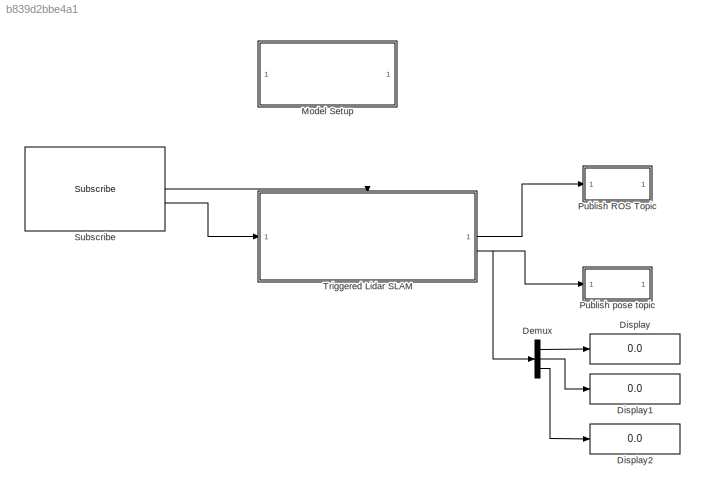
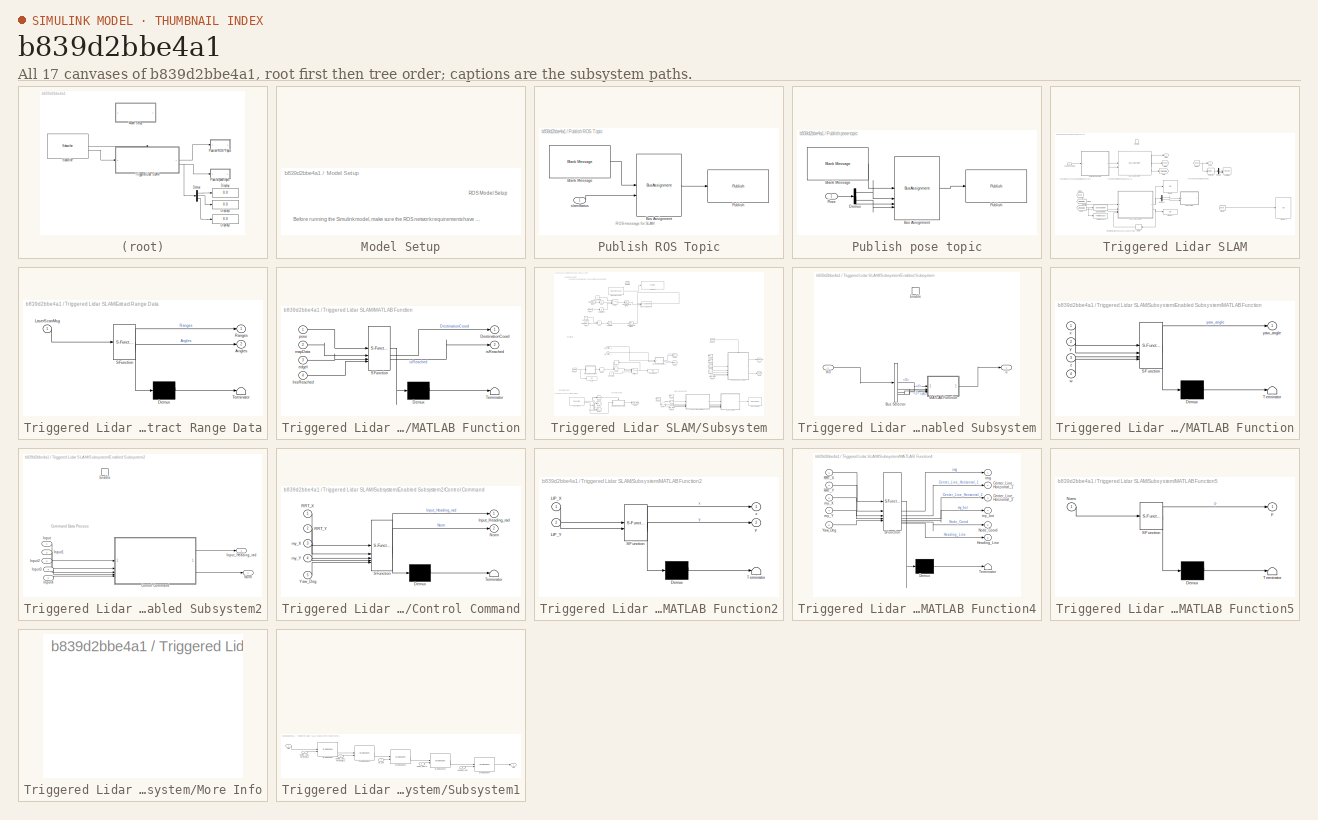
[diagram: thumbnail index - all 17 canvases of the model, root first then tree order]
MODEL slx_b839d2bbe4a1
KIND model
CONFIG AbsTol = auto
CONFIG EnableMultiTasking = off
CONFIG FixedStep = auto
CONFIG MaxStep = auto
CONFIG MinStep = auto
CONFIG RelTol = 1e-3
CONFIG SampleTimeConstraint = Unconstrained
CONFIG SolverName = FixedStepAuto
CONFIG StartTime = 0.0
CONFIG StopTime = inf
WORKSPACE source: mxarray member
WORKSPACE SL_ROS_VariableLengthArrays_MaxSizes: object (value not decoded)
BLOCK [Demux] Demux
  Outputs = 3
BLOCK [Display] Display
  Decimation = 1
BLOCK [Display] Display1
  Decimation = 1
BLOCK [Display] Display2
  Decimation = 1
BLOCK [SubSystem] Model Setup
BLOCK [SubSystem] Publish ROS Topic
BLOCK [Reference] Publish ROS Topic/Blank Message  REF=robotlib/Blank Message
  SourceBlock = robotlib/Blank Message
  SourceType = ROS Blank Message
BLOCK [BusAssignment] Publish ROS Topic/Bus Assignment
  AssignedSignals = Data
BLOCK [Reference] Publish ROS Topic/Publish  REF=robotlib/Publish
  SourceBlock = robotlib/Publish
  SourceType = ROS Publish
BLOCK [Inport] Publish ROS Topic/slamStatus
BLOCK [SubSystem] Publish pose topic
BLOCK [Reference] Publish pose topic/Blank Message  REF=robotlib/Blank Message
  SourceBlock = robotlib/Blank Message
  SourceType = ROS Blank Message
BLOCK [BusAssignment] Publish pose topic/Bus Assignment
  AssignedSignals = X,Y,Theta
BLOCK [Demux] Publish pose topic/Demux
  Outputs = 3
BLOCK [Inport] Publish pose topic/Pose
  NameLocation = top
BLOCK [Reference] Publish pose topic/Publish  REF=robotlib/Publish
  SourceBlock = robotlib/Publish
  SourceType = ROS Publish
BLOCK [Reference] Subscribe  REF=robotlib/Subscribe
  SourceBlock = robotlib/Subscribe
  SourceType = ROS Subscribe
BLOCK [SubSystem] Triggered Lidar SLAM
BLOCK [Delay] Triggered Lidar SLAM/Delay
  DelayLength = 10
  InputPortMap = u0
  NameLocation = top
BLOCK [Demux] Triggered Lidar SLAM/Demux
  Outputs = 2
BLOCK [Demux] Triggered Lidar SLAM/Demux1
  Commented = on
  Outputs = 2
BLOCK [Display] Triggered Lidar SLAM/Display
  Commented = on
  Decimation = 1
BLOCK [Display] Triggered Lidar SLAM/Display1
  Decimation = 1
BLOCK [Display] Triggered Lidar SLAM/Display4
  Decimation = 1
BLOCK [Reference] Triggered Lidar SLAM/Edge Detection  REF=visionanalysis/Edge Detection
  SourceBlock = visionanalysis/Edge Detection
  SourceType = Edge Detection
BLOCK [EnablePort] Triggered Lidar SLAM/Enable
  PropagateVarSize = During execution
BLOCK [SubSystem] Triggered Lidar SLAM/Extract Range Data
  ErrorFcn = Stateflow.Translate.translate
  PermitHierarchicalResolution = ExplicitOnly
  SFBlockType = MATLAB Function
  TreatAsAtomicUnit = on
BLOCK [Demux] Triggered Lidar SLAM/Extract Range Data/ Demux 
  Outputs = 1
BLOCK [S-Function] Triggered Lidar SLAM/Extract Range Data/ SFunction 
  EnableBusSupport = on
  FunctionName = sf_sfun
  PortCounts = [1 3]
  SFcnIsStateOwnerBlock = off
  SFunctionDeploymentMode = off
  Tag = Stateflow S-Function 5
BLOCK [Terminator] Triggered Lidar SLAM/Extract Range Data/ Terminator 
BLOCK [Outport] Triggered Lidar SLAM/Extract Range Data/Angles
  Port = 2
  VectorParamsAs1DForOutWhenUnconnected = off
BLOCK [Inport] Triggered Lidar SLAM/Extract Range Data/LaserScanMsg
BLOCK [Outport] Triggered Lidar SLAM/Extract Range Data/Ranges
  VectorParamsAs1DForOutWhenUnconnected = off
BLOCK [From] Triggered Lidar SLAM/From
  GotoTag = mapData
BLOCK [From] Triggered Lidar SLAM/From1
  GotoTag = pose
BLOCK [From] Triggered Lidar SLAM/From2
  GotoTag = mapData
BLOCK [From] Triggered Lidar SLAM/From3
  GotoTag = pose
BLOCK [From] Triggered Lidar SLAM/From4
  GotoTag = pose
BLOCK [Goto] Triggered Lidar SLAM/Goto
  GotoTag = mapData
BLOCK [Goto] Triggered Lidar SLAM/Goto1
  GotoTag = pose
BLOCK [Inport] Triggered Lidar SLAM/LaserScanMsg
  NameLocation = top
BLOCK [SubSystem] Triggered Lidar SLAM/MATLAB Function
  ErrorFcn = Stateflow.Translate.translate
  LibrarySourceBlock = simulink/User-Defined\nFunctions/MATLAB Function
  PermitHierarchicalResolution = ExplicitOnly
  SFBlockType = MATLAB Function
  TreatAsAtomicUnit = on
BLOCK [Demux] Triggered Lidar SLAM/MATLAB Function/ Demux 
  Outputs = 1
BLOCK [S-Function] Triggered Lidar SLAM/MATLAB Function/ SFunction 
  EnableBusSupport = on
  FunctionName = sf_sfun
  PortCounts = [4 3]
  SFcnIsStateOwnerBlock = off
  SFunctionDeploymentMode = off
  Tag = Stateflow S-Function 1
BLOCK [Terminator] Triggered Lidar SLAM/MATLAB Function/ Terminator 
BLOCK [Outport] Triggered Lidar SLAM/MATLAB Function/DestinationCoord
BLOCK [Inport] Triggered Lidar SLAM/MATLAB Function/InisReached
  Port = 4
BLOCK [Inport] Triggered Lidar SLAM/MATLAB Function/edgeI
  Port = 3
BLOCK [Outport] Triggered Lidar SLAM/MATLAB Function/isReached
  Port = 2
BLOCK [Inport] Triggered Lidar SLAM/MATLAB Function/mapData
  Port = 2
BLOCK [Inport] Triggered Lidar SLAM/MATLAB Function/pose
BLOCK [MATLABSystem] Triggered Lidar SLAM/MATLAB System
  MaskDisplay = disp('LidarSlam_interp');\nport_label('input',1,'ranges');\nport_label('input',2,'angles');\nport_label('output',1,'slamStatus');\nport_label('output',2,'pose');\nport_label('output',3,'mapData');
  MaskType = LidarSlam_interp
  SimulateUsing = Interpreted execution
  System = LidarSlam_interp
  mapResolution = 20
  maxLidarRange = 10
  maxNumScans = 15
BLOCK [Outport] Triggered Lidar SLAM/Pose
  Port = 2
BLOCK [Selector] Triggered Lidar SLAM/Selector
  IndexOptions = Index vector (dialog)
  Indices = [1 2]
  InputPortWidth = 3
  OutputSizes = 1
BLOCK [Outport] Triggered Lidar SLAM/Status
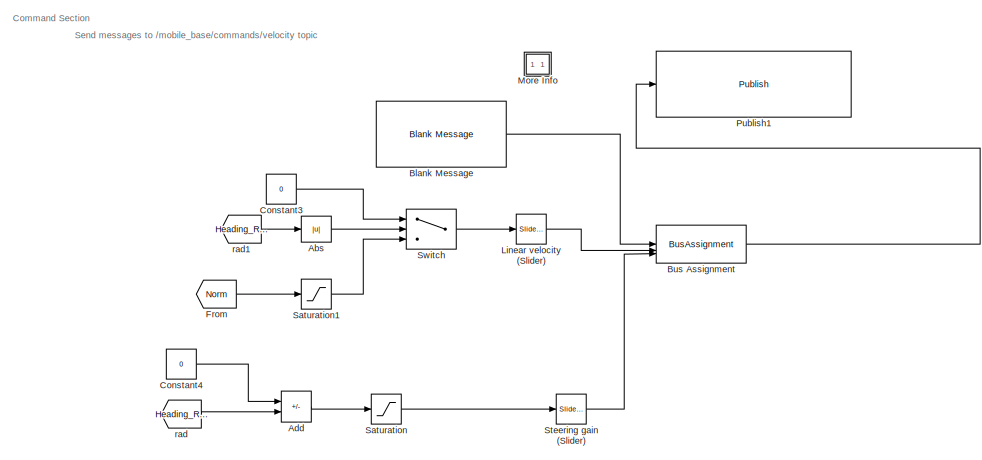
[diagram: Triggered Lidar SLAM/Subsystem - part 1/4, top left region]
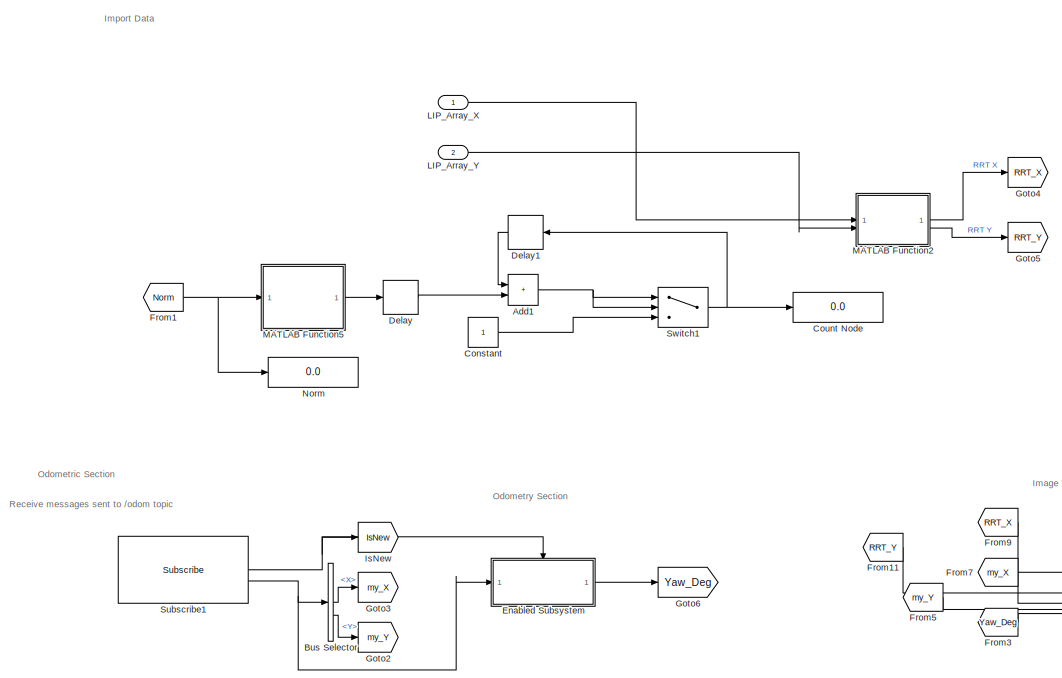
[diagram: Triggered Lidar SLAM/Subsystem - part 2/4, bottom left region]
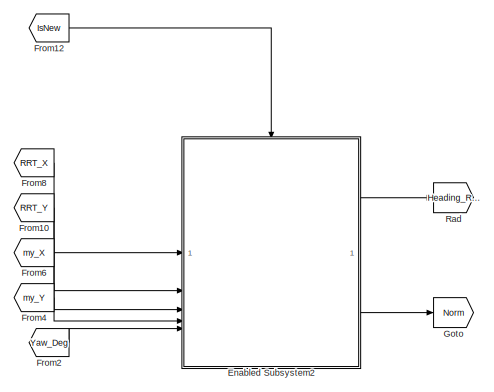
[diagram: Triggered Lidar SLAM/Subsystem - part 3/4, middle right region]
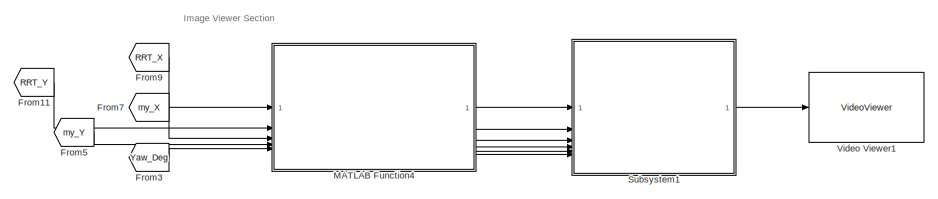
[diagram: Triggered Lidar SLAM/Subsystem - part 4/4, bottom right region]
BLOCK [SubSystem] Triggered Lidar SLAM/Subsystem
  Commented = on
BLOCK [Abs] Triggered Lidar SLAM/Subsystem/Abs
  SaturateOnIntegerOverflow = off
BLOCK [Sum] Triggered Lidar SLAM/Subsystem/Add
  IconShape = rectangular
  Inputs = +-
BLOCK [Sum] Triggered Lidar SLAM/Subsystem/Add1
  IconShape = rectangular
BLOCK [Reference] Triggered Lidar SLAM/Subsystem/Blank Message  REF=robotlib/Blank Message
  SourceBlock = robotlib/Blank Message
  SourceType = ROS Blank Message
BLOCK [BusAssignment] Triggered Lidar SLAM/Subsystem/Bus Assignment
  AssignedSignals = Linear.X,Angular.Z
  DialogController = Simulink.DDGSource_BusAssignment
BLOCK [BusSelector] Triggered Lidar SLAM/Subsystem/Bus Selector
  DialogController = Simulink.DDGSource_BusSelector
  OutputSignals = Pose.Pose.Position.X,Pose.Pose.Position.Y
BLOCK [Constant] Triggered Lidar SLAM/Subsystem/Constant
BLOCK [Constant] Triggered Lidar SLAM/Subsystem/Constant3
  NameLocation = left
  Value = 0
BLOCK [Constant] Triggered Lidar SLAM/Subsystem/Constant4
  Value = 0
BLOCK [Display] Triggered Lidar SLAM/Subsystem/Count Node
  Decimation = 1
BLOCK [Delay] Triggered Lidar SLAM/Subsystem/Delay
  DelayLength = 1
  InputPortMap = u0
BLOCK [Delay] Triggered Lidar SLAM/Subsystem/Delay1
  DelayLength = 1
  InputPortMap = u0
  NameLocation = top
BLOCK [SubSystem] Triggered Lidar SLAM/Subsystem/Enabled Subsystem
  TreatAsAtomicUnit = on
BLOCK [BusSelector] Triggered Lidar SLAM/Subsystem/Enabled Subsystem/Bus Selector
  OutputSignals = Pose.Pose.Orientation.X,Pose.Pose.Orientation.Y,Pose.Pose.Orientation.Z,Pose.Pose.Orientation.W
BLOCK [EnablePort] Triggered Lidar SLAM/Subsystem/Enabled Subsystem/Enable
BLOCK [Inport] Triggered Lidar SLAM/Subsystem/Enabled Subsystem/In3
BLOCK [SubSystem] Triggered Lidar SLAM/Subsystem/Enabled Subsystem/MATLAB Function
  ErrorFcn = Stateflow.Translate.translate
  LibrarySourceBlock = simulink/User-Defined\nFunctions/MATLAB Function
  PermitHierarchicalResolution = ExplicitOnly
  SFBlockType = MATLAB Function
  TreatAsAtomicUnit = on
BLOCK [Demux] Triggered Lidar SLAM/Subsystem/Enabled Subsystem/MATLAB Function/ Demux 
  Outputs = 1
BLOCK [S-Function] Triggered Lidar SLAM/Subsystem/Enabled Subsystem/MATLAB Function/ SFunction 
  EnableBusSupport = on
  FunctionName = sf_sfun
  PortCounts = [4 2]
  SFcnIsStateOwnerBlock = off
  SFunctionDeploymentMode = off
  Tag = Stateflow S-Function 2
BLOCK [Terminator] Triggered Lidar SLAM/Subsystem/Enabled Subsystem/MATLAB Function/ Terminator 
BLOCK [Inport] Triggered Lidar SLAM/Subsystem/Enabled Subsystem/MATLAB Function/w
  Port = 4
BLOCK [Inport] Triggered Lidar SLAM/Subsystem/Enabled Subsystem/MATLAB Function/x
BLOCK [Inport] Triggered Lidar SLAM/Subsystem/Enabled Subsystem/MATLAB Function/y
  Port = 2
BLOCK [Outport] Triggered Lidar SLAM/Subsystem/Enabled Subsystem/MATLAB Function/yaw_angle
BLOCK [Inport] Triggered Lidar SLAM/Subsystem/Enabled Subsystem/MATLAB Function/z
  Port = 3
BLOCK [Outport] Triggered Lidar SLAM/Subsystem/Enabled Subsystem/u
BLOCK [SubSystem] Triggered Lidar SLAM/Subsystem/Enabled Subsystem2
  TreatAsAtomicUnit = on
BLOCK [SubSystem] Triggered Lidar SLAM/Subsystem/Enabled Subsystem2/Control Command
  ErrorFcn = Stateflow.Translate.translate
  LibrarySourceBlock = simulink/User-Defined\nFunctions/MATLAB Function
  PermitHierarchicalResolution = ExplicitOnly
  SFBlockType = MATLAB Function
  TreatAsAtomicUnit = on
BLOCK [Demux] Triggered Lidar SLAM/Subsystem/Enabled Subsystem2/Control Command/ Demux 
  Outputs = 1
BLOCK [S-Function] Triggered Lidar SLAM/Subsystem/Enabled Subsystem2/Control Command/ SFunction 
  EnableBusSupport = on
  FunctionName = sf_sfun
  PortCounts = [5 3]
  SFcnIsStateOwnerBlock = off
  SFunctionDeploymentMode = off
  Tag = Stateflow S-Function 3
BLOCK [Terminator] Triggered Lidar SLAM/Subsystem/Enabled Subsystem2/Control Command/ Terminator 
BLOCK [Outport] Triggered Lidar SLAM/Subsystem/Enabled Subsystem2/Control Command/Input_Heading_rad
BLOCK [Outport] Triggered Lidar SLAM/Subsystem/Enabled Subsystem2/Control Command/Norm
  Port = 2
BLOCK [Inport] Triggered Lidar SLAM/Subsystem/Enabled Subsystem2/Control Command/RRT_X
BLOCK [Inport] Triggered Lidar SLAM/Subsystem/Enabled Subsystem2/Control Command/RRT_Y
  Port = 2
BLOCK [Inport] Triggered Lidar SLAM/Subsystem/Enabled Subsystem2/Control Command/Yaw_Deg
  Port = 5
BLOCK [Inport] Triggered Lidar SLAM/Subsystem/Enabled Subsystem2/Control Command/my_X
  Port = 3
BLOCK [Inport] Triggered Lidar SLAM/Subsystem/Enabled Subsystem2/Control Command/my_Y
  Port = 4
BLOCK [EnablePort] Triggered Lidar SLAM/Subsystem/Enabled Subsystem2/Enable
BLOCK [Inport] Triggered Lidar SLAM/Subsystem/Enabled Subsystem2/Input
BLOCK [Inport] Triggered Lidar SLAM/Subsystem/Enabled Subsystem2/Input1
  Port = 2
BLOCK [Inport] Triggered Lidar SLAM/Subsystem/Enabled Subsystem2/Input2
  Port = 3
BLOCK [Inport] Triggered Lidar SLAM/Subsystem/Enabled Subsystem2/Input3
  Port = 4
BLOCK [Inport] Triggered Lidar SLAM/Subsystem/Enabled Subsystem2/Input4
  Port = 5
BLOCK [Outport] Triggered Lidar SLAM/Subsystem/Enabled Subsystem2/Input_Heading_rad
BLOCK [Outport] Triggered Lidar SLAM/Subsystem/Enabled Subsystem2/Norm
  Port = 2
BLOCK [From] Triggered Lidar SLAM/Subsystem/From
  GotoTag = Norm
BLOCK [From] Triggered Lidar SLAM/Subsystem/From1
  GotoTag = Norm
BLOCK [From] Triggered Lidar SLAM/Subsystem/From10
  GotoTag = RRT_Y
BLOCK [From] Triggered Lidar SLAM/Subsystem/From11
  GotoTag = RRT_Y
BLOCK [From] Triggered Lidar SLAM/Subsystem/From12
  GotoTag = IsNew
BLOCK [From] Triggered Lidar SLAM/Subsystem/From2
  GotoTag = Yaw_Deg
BLOCK [From] Triggered Lidar SLAM/Subsystem/From3
  GotoTag = Yaw_Deg
BLOCK [From] Triggered Lidar SLAM/Subsystem/From4
  GotoTag = my_Y
BLOCK [From] Triggered Lidar SLAM/Subsystem/From5
  GotoTag = my_Y
BLOCK [From] Triggered Lidar SLAM/Subsystem/From6
  GotoTag = my_X
BLOCK [From] Triggered Lidar SLAM/Subsystem/From7
  GotoTag = my_X
BLOCK [From] Triggered Lidar SLAM/Subsystem/From8
  GotoTag = RRT_X
BLOCK [From] Triggered Lidar SLAM/Subsystem/From9
  GotoTag = RRT_X
BLOCK [Goto] Triggered Lidar SLAM/Subsystem/Goto
  GotoTag = Norm
BLOCK [Goto] Triggered Lidar SLAM/Subsystem/Goto2
  GotoTag = my_Y
BLOCK [Goto] Triggered Lidar SLAM/Subsystem/Goto3
  GotoTag = my_X
BLOCK [Goto] Triggered Lidar SLAM/Subsystem/Goto4
  GotoTag = RRT_X
BLOCK [Goto] Triggered Lidar SLAM/Subsystem/Goto5
  GotoTag = RRT_Y
BLOCK [Goto] Triggered Lidar SLAM/Subsystem/Goto6
  GotoTag = Yaw_Deg
BLOCK [Goto] Triggered Lidar SLAM/Subsystem/IsNew
  GotoTag = IsNew
BLOCK [Inport] Triggered Lidar SLAM/Subsystem/LIP_Array_X
BLOCK [Inport] Triggered Lidar SLAM/Subsystem/LIP_Array_Y
  Port = 2
BLOCK [Reference] Triggered Lidar SLAM/Subsystem/Linear velocity (Slider)  REF=simulink/Math
Operations/Slider
Gain
  SourceBlock = simulink/Math\nOperations/Slider\nGain
  SourceType = Slider Gain
BLOCK [SubSystem] Triggered Lidar SLAM/Subsystem/MATLAB Function2
  ErrorFcn = Stateflow.Translate.translate
  LibrarySourceBlock = simulink/User-Defined\nFunctions/MATLAB Function
  PermitHierarchicalResolution = ExplicitOnly
  SFBlockType = MATLAB Function
  TreatAsAtomicUnit = on
BLOCK [Demux] Triggered Lidar SLAM/Subsystem/MATLAB Function2/ Demux 
  Outputs = 1
BLOCK [S-Function] Triggered Lidar SLAM/Subsystem/MATLAB Function2/ SFunction 
  EnableBusSupport = on
  FunctionName = sf_sfun
  PortCounts = [2 3]
  SFcnIsStateOwnerBlock = off
  SFunctionDeploymentMode = off
  Tag = Stateflow S-Function 4
BLOCK [Terminator] Triggered Lidar SLAM/Subsystem/MATLAB Function2/ Terminator 
BLOCK [Inport] Triggered Lidar SLAM/Subsystem/MATLAB Function2/LIP_X
BLOCK [Inport] Triggered Lidar SLAM/Subsystem/MATLAB Function2/LIP_Y
  Port = 2
BLOCK [Outport] Triggered Lidar SLAM/Subsystem/MATLAB Function2/x
BLOCK [Outport] Triggered Lidar SLAM/Subsystem/MATLAB Function2/y
  Port = 2
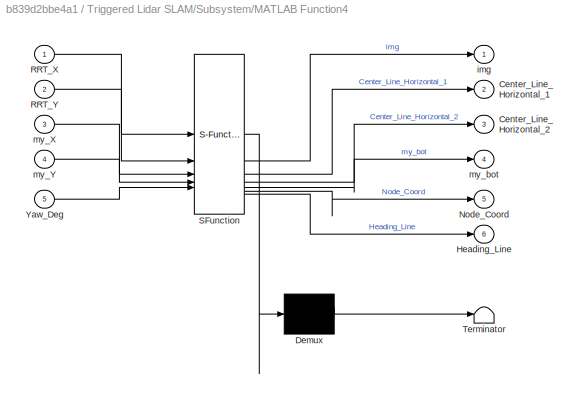
BLOCK [SubSystem] Triggered Lidar SLAM/Subsystem/MATLAB Function4
  ErrorFcn = Stateflow.Translate.translate
  LibrarySourceBlock = simulink/User-Defined\nFunctions/MATLAB Function
  PermitHierarchicalResolution = ExplicitOnly
  SFBlockType = MATLAB Function
  TreatAsAtomicUnit = on
BLOCK [Demux] Triggered Lidar SLAM/Subsystem/MATLAB Function4/ Demux 
  Outputs = 1
BLOCK [S-Function] Triggered Lidar SLAM/Subsystem/MATLAB Function4/ SFunction 
  EnableBusSupport = on
  FunctionName = sf_sfun
  PortCounts = [5 7]
  SFcnIsStateOwnerBlock = off
  SFunctionDeploymentMode = off
  Tag = Stateflow S-Function 6
BLOCK [Terminator] Triggered Lidar SLAM/Subsystem/MATLAB Function4/ Terminator 
BLOCK [Outport] Triggered Lidar SLAM/Subsystem/MATLAB Function4/Center_Line_Horizontal_1
  Port = 2
BLOCK [Outport] Triggered Lidar SLAM/Subsystem/MATLAB Function4/Center_Line_Horizontal_2
  Port = 3
BLOCK [Outport] Triggered Lidar SLAM/Subsystem/MATLAB Function4/Heading_Line
  Port = 6
BLOCK [Outport] Triggered Lidar SLAM/Subsystem/MATLAB Function4/Node_Coord
  Port = 5
BLOCK [Inport] Triggered Lidar SLAM/Subsystem/MATLAB Function4/RRT_X
BLOCK [Inport] Triggered Lidar SLAM/Subsystem/MATLAB Function4/RRT_Y
  Port = 2
BLOCK [Inport] Triggered Lidar SLAM/Subsystem/MATLAB Function4/Yaw_Deg
  Port = 5
BLOCK [Outport] Triggered Lidar SLAM/Subsystem/MATLAB Function4/img
BLOCK [Inport] Triggered Lidar SLAM/Subsystem/MATLAB Function4/my_X
  Port = 3
BLOCK [Inport] Triggered Lidar SLAM/Subsystem/MATLAB Function4/my_Y
  Port = 4
BLOCK [Outport] Triggered Lidar SLAM/Subsystem/MATLAB Function4/my_bot
  Port = 4
BLOCK [SubSystem] Triggered Lidar SLAM/Subsystem/MATLAB Function5
  ErrorFcn = Stateflow.Translate.translate
  LibrarySourceBlock = simulink/User-Defined\nFunctions/MATLAB Function
  PermitHierarchicalResolution = ExplicitOnly
  SFBlockType = MATLAB Function
  TreatAsAtomicUnit = on
BLOCK [Demux] Triggered Lidar SLAM/Subsystem/MATLAB Function5/ Demux 
  Outputs = 1
BLOCK [S-Function] Triggered Lidar SLAM/Subsystem/MATLAB Function5/ SFunction 
  EnableBusSupport = on
  FunctionName = sf_sfun
  PortCounts = [1 2]
  SFcnIsStateOwnerBlock = off
  SFunctionDeploymentMode = off
  Tag = Stateflow S-Function 7
BLOCK [Terminator] Triggered Lidar SLAM/Subsystem/MATLAB Function5/ Terminator 
BLOCK [Inport] Triggered Lidar SLAM/Subsystem/MATLAB Function5/Norm
BLOCK [Outport] Triggered Lidar SLAM/Subsystem/MATLAB Function5/p
BLOCK [SubSystem] Triggered Lidar SLAM/Subsystem/More Info
  OpenFcn = showdemo(bdroot(gcb))
BLOCK [Display] Triggered Lidar SLAM/Subsystem/Norm
  Decimation = 1
BLOCK [Reference] Triggered Lidar SLAM/Subsystem/Publish1  REF=robotlib/Publish
  SourceBlock = robotlib/Publish
  SourceType = ROS Publish
BLOCK [Goto] Triggered Lidar SLAM/Subsystem/Rad
  GotoTag = Heading_Rad
BLOCK [Saturate] Triggered Lidar SLAM/Subsystem/Saturation
  LowerLimit = -0.3
  UpperLimit = 0.3
BLOCK [Saturate] Triggered Lidar SLAM/Subsystem/Saturation1
  LowerLimit = -0.3
  UpperLimit = 0.3
BLOCK [Reference] Triggered Lidar SLAM/Subsystem/Steering gain (Slider)  REF=simulink/Math
Operations/Slider
Gain
  SourceBlock = simulink/Math\nOperations/Slider\nGain
  SourceType = Slider Gain
BLOCK [Reference] Triggered Lidar SLAM/Subsystem/Subscribe1  REF=robotlib/Subscribe
  SourceBlock = robotlib/Subscribe
  SourceType = ROS Subscribe
BLOCK [SubSystem] Triggered Lidar SLAM/Subsystem/Subsystem1
BLOCK [Inport] Triggered Lidar SLAM/Subsystem/Subsystem1/Center_Line_Horizontal_1
  Port = 2
BLOCK [Inport] Triggered Lidar SLAM/Subsystem/Subsystem1/Center_Line_Horizontal_2
  Port = 3
BLOCK [Reference] Triggered Lidar SLAM/Subsystem/Subsystem1/Draw Shapes  REF=visiontextngfix/Draw Shapes
  SourceBlock = visiontextngfix/Draw Shapes
  SourceType = Draw Shapes
BLOCK [Reference] Triggered Lidar SLAM/Subsystem/Subsystem1/Draw Shapes1  REF=visiontextngfix/Draw Shapes
  SourceBlock = visiontextngfix/Draw Shapes
  SourceType = Draw Shapes
BLOCK [Reference] Triggered Lidar SLAM/Subsystem/Subsystem1/Draw Shapes2  REF=visiontextngfix/Draw Shapes
  SourceBlock = visiontextngfix/Draw Shapes
  SourceType = Draw Shapes
BLOCK [Reference] Triggered Lidar SLAM/Subsystem/Subsystem1/Draw Shapes3  REF=visiontextngfix/Draw Shapes
  SourceBlock = visiontextngfix/Draw Shapes
  SourceType = Draw Shapes
BLOCK [Reference] Triggered Lidar SLAM/Subsystem/Subsystem1/Draw Shapes4  REF=visiontextngfix/Draw Shapes
  SourceBlock = visiontextngfix/Draw Shapes
  SourceType = Draw Shapes
BLOCK [Inport] Triggered Lidar SLAM/Subsystem/Subsystem1/Heading_Line
  Port = 6
BLOCK [Inport] Triggered Lidar SLAM/Subsystem/Subsystem1/Node_Coord
  Port = 5
BLOCK [Outport] Triggered Lidar SLAM/Subsystem/Subsystem1/Out1
BLOCK [Inport] Triggered Lidar SLAM/Subsystem/Subsystem1/img
  NameLocation = right
BLOCK [Inport] Triggered Lidar SLAM/Subsystem/Subsystem1/my_bot
  Port = 4
BLOCK [Switch] Triggered Lidar SLAM/Subsystem/Switch
  InputSameDT = off
  SaturateOnIntegerOverflow = off
  Threshold = 5*(pi/180)
BLOCK [Switch] Triggered Lidar SLAM/Subsystem/Switch1
  Criteria = u2 > Threshold
  InputSameDT = off
  SaturateOnIntegerOverflow = off
  Threshold = 1
BLOCK [VideoViewer] Triggered Lidar SLAM/Subsystem/Video Viewer1
  FigPos = [755 1049 776 766]
  ScopeSpecificationString = vipscopes.VideoViewerScopeCfg('CurrentConfiguration', extmgr.ConfigurationSet(extmgr.Configuration('Core','General UI',true),extmgr.Configuration('Core','Source UI',true),extmgr.Configuration('Sources','WiredSimulink',true),extmgr.Configuration('Visuals','Video',true),extmgr.Configuration('Tools','Image Navigation Tools',true,'Magnification',8),extmgr.Configuration('Tools','Image Tool',true),extmg...<+92ch>
  colormapValue = gray(256)
BLOCK [From] Triggered Lidar SLAM/Subsystem/rad
  GotoTag = Heading_Rad
BLOCK [From] Triggered Lidar SLAM/Subsystem/rad1
  GotoTag = Heading_Rad
BLOCK [ToWorkspace] Triggered Lidar SLAM/To Workspace
  FixptAsFi = on
  MaxDataPoints = inf
  SampleTime = -1
  SaveFormat = Structure With Time
  VariableName = MapData
BLOCK [Record] Triggered Lidar SLAM/XY Graph
  CompatibilityTag = XY
  FileSettingsInternal = {"entries":[{"content":{"excelSettings":{"content":{},"type":"Streamout.ExcelSettings"}},"type":"Streamout.FileSettingStorage","uuid":""}],"packageUris":["http:\/\/schema.mathworks.com\/mf0\/streamout_blocks\/R2020a"],"version":"1.0"}
  Layout = [1 1]
  SignalsInternal = {"entries":[{"content":{"signals":[{"content":{"blockPath":[],"dimensions":[1,1],"domain":"","lineColor":"#a2142f","plots":[1],"port":1,"sid":[""],"signalID":932,"signalName":"Demux:1"},"type":"RecordBlkView.Signal","uuid":""},{"content":{"blockPath":[],"dimensions":[1,1],"domain":"","lineColor":"#139fff","plots":[1],"port":2,"sid":[""],"signalID":936,"signalName":"Demux:2"},"type":"RecordBlkView....<+164ch>
  VisualizationBindings = {"xyplotplugin":{"info":[{"series":[{"bindingParametersList":[{"parameter":"X-Axis","signalID":932,"signalName":"Demux:1"},{"parameter":"Y-Axis","signalID":936,"signalName":"Demux:2"}],"seriesID":63206}],"subplotID":1}]}}
  st = -1
ANNOTATION Model Setup: Before running the Simulink model, make sure the ROS network requirements have been set appropriately through the Simulink Toolstrip. Note that setting a Node Host IP address is optional and depends on the computer setup.
ANNOTATION Model Setup: ROS Model Setup
ANNOTATION Publish ROS Topic: ROS message for SLAM
ANNOTATION Triggered Lidar SLAM: Calculate range and angular data from laser scans
ANNOTATION Triggered Lidar SLAM: Frontier Detection based on occupancy map
ANNOTATION Triggered Lidar SLAM: Pose(X,Y,Heading) Output section
ANNOTATION Triggered Lidar SLAM: System object to implement LIDAR SLAM
ANNOTATION Triggered Lidar SLAM/Subsystem: Receive messages sent to /odom topic
ANNOTATION Triggered Lidar SLAM/Subsystem: Send messages to /mobile_base/commands/velocity topic
ANNOTATION Triggered Lidar SLAM/Subsystem: Command Section
ANNOTATION Triggered Lidar SLAM/Subsystem: Image Viewer Section
ANNOTATION Triggered Lidar SLAM/Subsystem: Import Data
ANNOTATION Triggered Lidar SLAM/Subsystem: Odometric Section
ANNOTATION Triggered Lidar SLAM/Subsystem: Odometry Section
ANNOTATION Triggered Lidar SLAM/Subsystem/Enabled Subsystem2: Command Data Process
LINE Demux:1 -> Display:1
LINE Demux:2 -> Display1:1
LINE Demux:3 -> Display2:1
LINE Publish ROS Topic/Blank Message:1 -> Publish ROS Topic/Bus Assignment:1
LINE Publish ROS Topic/Bus Assignment:1 -> Publish ROS Topic/Publish:1
LINE Publish ROS Topic/slamStatus:1 -> Publish ROS Topic/Bus Assignment:2
LINE Publish pose topic/Blank Message:1 -> Publish pose topic/Bus Assignment:1
LINE Publish pose topic/Bus Assignment:1 -> Publish pose topic/Publish:1
LINE Publish pose topic/Demux:1 -> Publish pose topic/Bus Assignment:2
LINE Publish pose topic/Demux:2 -> Publish pose topic/Bus Assignment:3
LINE Publish pose topic/Demux:3 -> Publish pose topic/Bus Assignment:4
LINE Publish pose topic/Pose:1 -> Publish pose topic/Demux:1
LINE Subscribe:1 -> Triggered Lidar SLAM:enable
LINE Subscribe:2 -> Triggered Lidar SLAM:1
LINE Triggered Lidar SLAM/Delay:1 -> Triggered Lidar SLAM/MATLAB Function:4
LINE Triggered Lidar SLAM/Demux1:1 -> Triggered Lidar SLAM/Subsystem:1
LINE Triggered Lidar SLAM/Demux1:2 -> Triggered Lidar SLAM/Subsystem:2
LINE Triggered Lidar SLAM/Demux:1 -> Triggered Lidar SLAM/XY Graph:1
LINE Triggered Lidar SLAM/Demux:2 -> Triggered Lidar SLAM/XY Graph:2
LINE Triggered Lidar SLAM/Edge Detection:1 -> Triggered Lidar SLAM/MATLAB Function:3
LINE Triggered Lidar SLAM/Extract Range Data:1 -> Triggered Lidar SLAM/MATLAB System:1
LINE Triggered Lidar SLAM/Extract Range Data:2 -> Triggered Lidar SLAM/MATLAB System:2
LINE Triggered Lidar SLAM/From1:1 -> Triggered Lidar SLAM/Display4:1
LINE Triggered Lidar SLAM/From2:1 -> Triggered Lidar SLAM/MATLAB Function:2
LINE Triggered Lidar SLAM/From3:1 -> Triggered Lidar SLAM/MATLAB Function:1
NET Triggered Lidar SLAM/From4:1 -> Triggered Lidar SLAM/Pose:1, Triggered Lidar SLAM/Selector:1
NET Triggered Lidar SLAM/From:1 -> Triggered Lidar SLAM/Edge Detection:1, Triggered Lidar SLAM/To Workspace:1
LINE Triggered Lidar SLAM/LaserScanMsg:1 -> Triggered Lidar SLAM/Extract Range Data:1
NET Triggered Lidar SLAM/MATLAB Function:1 -> Triggered Lidar SLAM/Demux1:1, Triggered Lidar SLAM/Display:1
NET Triggered Lidar SLAM/MATLAB Function:2 -> Triggered Lidar SLAM/Delay:1, Triggered Lidar SLAM/Display1:1
LINE Triggered Lidar SLAM/MATLAB System:1 -> Triggered Lidar SLAM/Status:1
LINE Triggered Lidar SLAM/MATLAB System:2 -> Triggered Lidar SLAM/Goto1:1
LINE Triggered Lidar SLAM/MATLAB System:3 -> Triggered Lidar SLAM/Goto:1
LINE Triggered Lidar SLAM/Selector:1 -> Triggered Lidar SLAM/Demux:1
LINE Triggered Lidar SLAM/Subsystem/Abs:1 -> Triggered Lidar SLAM/Subsystem/Switch:2
NET Triggered Lidar SLAM/Subsystem/Add1:1 -> Triggered Lidar SLAM/Subsystem/Switch1:1, Triggered Lidar SLAM/Subsystem/Switch1:2
LINE Triggered Lidar SLAM/Subsystem/Add:1 -> Triggered Lidar SLAM/Subsystem/Saturation:1
LINE Triggered Lidar SLAM/Subsystem/Blank Message:1 -> Triggered Lidar SLAM/Subsystem/Bus Assignment:1
LINE Triggered Lidar SLAM/Subsystem/Bus Assignment:1 -> Triggered Lidar SLAM/Subsystem/Publish1:1
LINE Triggered Lidar SLAM/Subsystem/Bus Selector:1 -> Triggered Lidar SLAM/Subsystem/Goto3:1
LINE Triggered Lidar SLAM/Subsystem/Bus Selector:2 -> Triggered Lidar SLAM/Subsystem/Goto2:1
LINE Triggered Lidar SLAM/Subsystem/Constant3:1 -> Triggered Lidar SLAM/Subsystem/Switch:1
LINE Triggered Lidar SLAM/Subsystem/Constant4:1 -> Triggered Lidar SLAM/Subsystem/Add:1
LINE Triggered Lidar SLAM/Subsystem/Constant:1 -> Triggered Lidar SLAM/Subsystem/Switch1:3
LINE Triggered Lidar SLAM/Subsystem/Delay1:1 -> Triggered Lidar SLAM/Subsystem/Add1:1
LINE Triggered Lidar SLAM/Subsystem/Delay:1 -> Triggered Lidar SLAM/Subsystem/Add1:2
LINE Triggered Lidar SLAM/Subsystem/Enabled Subsystem/Bus Selector:1 -> Triggered Lidar SLAM/Subsystem/Enabled Subsystem/MATLAB Function:1
LINE Triggered Lidar SLAM/Subsystem/Enabled Subsystem/Bus Selector:2 -> Triggered Lidar SLAM/Subsystem/Enabled Subsystem/MATLAB Function:2
LINE Triggered Lidar SLAM/Subsystem/Enabled Subsystem/Bus Selector:3 -> Triggered Lidar SLAM/Subsystem/Enabled Subsystem/MATLAB Function:3
LINE Triggered Lidar SLAM/Subsystem/Enabled Subsystem/Bus Selector:4 -> Triggered Lidar SLAM/Subsystem/Enabled Subsystem/MATLAB Function:4
LINE Triggered Lidar SLAM/Subsystem/Enabled Subsystem/In3:1 -> Triggered Lidar SLAM/Subsystem/Enabled Subsystem/Bus Selector:1
LINE Triggered Lidar SLAM/Subsystem/Enabled Subsystem/MATLAB Function:1 -> Triggered Lidar SLAM/Subsystem/Enabled Subsystem/u:1
LINE Triggered Lidar SLAM/Subsystem/Enabled Subsystem2/Control Command:1 -> Triggered Lidar SLAM/Subsystem/Enabled Subsystem2/Input_Heading_rad:1
LINE Triggered Lidar SLAM/Subsystem/Enabled Subsystem2/Control Command:2 -> Triggered Lidar SLAM/Subsystem/Enabled Subsystem2/Norm:1
LINE Triggered Lidar SLAM/Subsystem/Enabled Subsystem2/Input1:1 -> Triggered Lidar SLAM/Subsystem/Enabled Subsystem2/Control Command:2
LINE Triggered Lidar SLAM/Subsystem/Enabled Subsystem2/Input2:1 -> Triggered Lidar SLAM/Subsystem/Enabled Subsystem2/Control Command:3
LINE Triggered Lidar SLAM/Subsystem/Enabled Subsystem2/Input3:1 -> Triggered Lidar SLAM/Subsystem/Enabled Subsystem2/Control Command:4
LINE Triggered Lidar SLAM/Subsystem/Enabled Subsystem2/Input4:1 -> Triggered Lidar SLAM/Subsystem/Enabled Subsystem2/Control Command:5
LINE Triggered Lidar SLAM/Subsystem/Enabled Subsystem2/Input:1 -> Triggered Lidar SLAM/Subsystem/Enabled Subsystem2/Control Command:1
LINE Triggered Lidar SLAM/Subsystem/Enabled Subsystem2:1 -> Triggered Lidar SLAM/Subsystem/Rad:1
LINE Triggered Lidar SLAM/Subsystem/Enabled Subsystem2:2 -> Triggered Lidar SLAM/Subsystem/Goto:1
LINE Triggered Lidar SLAM/Subsystem/Enabled Subsystem:1 -> Triggered Lidar SLAM/Subsystem/Goto6:1
LINE Triggered Lidar SLAM/Subsystem/From10:1 -> Triggered Lidar SLAM/Subsystem/Enabled Subsystem2:2
LINE Triggered Lidar SLAM/Subsystem/From11:1 -> Triggered Lidar SLAM/Subsystem/MATLAB Function4:2
LINE Triggered Lidar SLAM/Subsystem/From12:1 -> Triggered Lidar SLAM/Subsystem/Enabled Subsystem2:enable
NET Triggered Lidar SLAM/Subsystem/From1:1 -> Triggered Lidar SLAM/Subsystem/MATLAB Function5:1, Triggered Lidar SLAM/Subsystem/Norm:1
LINE Triggered Lidar SLAM/Subsystem/From2:1 -> Triggered Lidar SLAM/Subsystem/Enabled Subsystem2:5
LINE Triggered Lidar SLAM/Subsystem/From3:1 -> Triggered Lidar SLAM/Subsystem/MATLAB Function4:5
LINE Triggered Lidar SLAM/Subsystem/From4:1 -> Triggered Lidar SLAM/Subsystem/Enabled Subsystem2:4
LINE Triggered Lidar SLAM/Subsystem/From5:1 -> Triggered Lidar SLAM/Subsystem/MATLAB Function4:4
LINE Triggered Lidar SLAM/Subsystem/From6:1 -> Triggered Lidar SLAM/Subsystem/Enabled Subsystem2:3
LINE Triggered Lidar SLAM/Subsystem/From7:1 -> Triggered Lidar SLAM/Subsystem/MATLAB Function4:3
LINE Triggered Lidar SLAM/Subsystem/From8:1 -> Triggered Lidar SLAM/Subsystem/Enabled Subsystem2:1
LINE Triggered Lidar SLAM/Subsystem/From9:1 -> Triggered Lidar SLAM/Subsystem/MATLAB Function4:1
LINE Triggered Lidar SLAM/Subsystem/From:1 -> Triggered Lidar SLAM/Subsystem/Saturation1:1
LINE Triggered Lidar SLAM/Subsystem/LIP_Array_X:1 -> Triggered Lidar SLAM/Subsystem/MATLAB Function2:1
LINE Triggered Lidar SLAM/Subsystem/LIP_Array_Y:1 -> Triggered Lidar SLAM/Subsystem/MATLAB Function2:2
LINE Triggered Lidar SLAM/Subsystem/Linear velocity (Slider):1 -> Triggered Lidar SLAM/Subsystem/Bus Assignment:2
LINE Triggered Lidar SLAM/Subsystem/MATLAB Function2:1 -> Triggered Lidar SLAM/Subsystem/Goto4:1
LINE Triggered Lidar SLAM/Subsystem/MATLAB Function2:2 -> Triggered Lidar SLAM/Subsystem/Goto5:1
LINE Triggered Lidar SLAM/Subsystem/MATLAB Function4:1 -> Triggered Lidar SLAM/Subsystem/Subsystem1:1
LINE Triggered Lidar SLAM/Subsystem/MATLAB Function4:2 -> Triggered Lidar SLAM/Subsystem/Subsystem1:2
LINE Triggered Lidar SLAM/Subsystem/MATLAB Function4:3 -> Triggered Lidar SLAM/Subsystem/Subsystem1:3
LINE Triggered Lidar SLAM/Subsystem/MATLAB Function4:4 -> Triggered Lidar SLAM/Subsystem/Subsystem1:4
LINE Triggered Lidar SLAM/Subsystem/MATLAB Function4:5 -> Triggered Lidar SLAM/Subsystem/Subsystem1:5
LINE Triggered Lidar SLAM/Subsystem/MATLAB Function4:6 -> Triggered Lidar SLAM/Subsystem/Subsystem1:6
LINE Triggered Lidar SLAM/Subsystem/MATLAB Function5:1 -> Triggered Lidar SLAM/Subsystem/Delay:1
LINE Triggered Lidar SLAM/Subsystem/Saturation1:1 -> Triggered Lidar SLAM/Subsystem/Switch:3
LINE Triggered Lidar SLAM/Subsystem/Saturation:1 -> Triggered Lidar SLAM/Subsystem/Steering gain (Slider):1
LINE Triggered Lidar SLAM/Subsystem/Steering gain (Slider):1 -> Triggered Lidar SLAM/Subsystem/Bus Assignment:3
NET Triggered Lidar SLAM/Subsystem/Subscribe1:1 -> Triggered Lidar SLAM/Subsystem/Enabled Subsystem:enable, Triggered Lidar SLAM/Subsystem/IsNew:1
NET Triggered Lidar SLAM/Subsystem/Subscribe1:2 -> Triggered Lidar SLAM/Subsystem/Bus Selector:1, Triggered Lidar SLAM/Subsystem/Enabled Subsystem:1
LINE Triggered Lidar SLAM/Subsystem/Subsystem1/Center_Line_Horizontal_1:1 -> Triggered Lidar SLAM/Subsystem/Subsystem1/Draw Shapes:2
LINE Triggered Lidar SLAM/Subsystem/Subsystem1/Center_Line_Horizontal_2:1 -> Triggered Lidar SLAM/Subsystem/Subsystem1/Draw Shapes1:2
LINE Triggered Lidar SLAM/Subsystem/Subsystem1/Draw Shapes1:1 -> Triggered Lidar SLAM/Subsystem/Subsystem1/Draw Shapes2:1
LINE Triggered Lidar SLAM/Subsystem/Subsystem1/Draw Shapes2:1 -> Triggered Lidar SLAM/Subsystem/Subsystem1/Draw Shapes3:1
LINE Triggered Lidar SLAM/Subsystem/Subsystem1/Draw Shapes3:1 -> Triggered Lidar SLAM/Subsystem/Subsystem1/Draw Shapes4:1
LINE Triggered Lidar SLAM/Subsystem/Subsystem1/Draw Shapes4:1 -> Triggered Lidar SLAM/Subsystem/Subsystem1/Out1:1
LINE Triggered Lidar SLAM/Subsystem/Subsystem1/Draw Shapes:1 -> Triggered Lidar SLAM/Subsystem/Subsystem1/Draw Shapes1:1
LINE Triggered Lidar SLAM/Subsystem/Subsystem1/Heading_Line:1 -> Triggered Lidar SLAM/Subsystem/Subsystem1/Draw Shapes4:2
LINE Triggered Lidar SLAM/Subsystem/Subsystem1/Node_Coord:1 -> Triggered Lidar SLAM/Subsystem/Subsystem1/Draw Shapes3:2
LINE Triggered Lidar SLAM/Subsystem/Subsystem1/img:1 -> Triggered Lidar SLAM/Subsystem/Subsystem1/Draw Shapes:1
LINE Triggered Lidar SLAM/Subsystem/Subsystem1/my_bot:1 -> Triggered Lidar SLAM/Subsystem/Subsystem1/Draw Shapes2:2
LINE Triggered Lidar SLAM/Subsystem/Subsystem1:1 -> Triggered Lidar SLAM/Subsystem/Video Viewer1:1
NET Triggered Lidar SLAM/Subsystem/Switch1:1 -> Triggered Lidar SLAM/Subsystem/Count Node:1, Triggered Lidar SLAM/Subsystem/Delay1:1
LINE Triggered Lidar SLAM/Subsystem/Switch:1 -> Triggered Lidar SLAM/Subsystem/Linear velocity (Slider):1
LINE Triggered Lidar SLAM/Subsystem/rad1:1 -> Triggered Lidar SLAM/Subsystem/Abs:1
LINE Triggered Lidar SLAM/Subsystem/rad:1 -> Triggered Lidar SLAM/Subsystem/Add:2
LINE Triggered Lidar SLAM:1 -> Publish ROS Topic:1
NET Triggered Lidar SLAM:2 -> Demux:1, Publish pose topic:1
note: NET lines group one-source signal fan-out (src -> all destinations, sorted); 1:1 wires keep LINE
CHART Triggered Lidar SLAM/MATLAB Function states=1 transitions=1
  STATE_LABEL 'eML_blk_kernel()'
  STATE_LABEL 'SCRIPT:\nfunction [DestinationCoord, isReached]  = FrontierDetection(pose,mapData,edgeI,InisReached)\npersistent goalCoordinate\nif(isempty(goalCoordinate))\n    goalCoordinate = [0 0];\nend\n\nif(~isempty(mapData))\n    [row , ~] = find(isnan(mapData));\n\n    if(~isempty(row))\n        mapData = mapData(1:row(1)-1,1:row(1)-1);\n    else\n        mapData = mapData;\n    end\n    map = occupancyMap(mapData,20);\n...<+2200ch>'
CHART Triggered Lidar SLAM/Subsystem/Enabled
Subsystem/MATLAB Function states=1 transitions=1
  STATE_LABEL 'eML_blk_kernel()'
  STATE_LABEL 'SCRIPT:\nfunction yaw_angle  = fcn(x, y, z, w)\n\nquat = [w x y z];\neul_angle = quat2eul(quat);\nyaw_angle = rad2deg(eul_angle(1));'
CHART Triggered Lidar SLAM/Subsystem/Enabled
Subsystem2/Control Command states=1 transitions=1
  STATE_LABEL 'eML_blk_kernel()'
  STATE_LABEL 'SCRIPT:\nfunction [Input_Heading_rad,Norm]  = fcn(RRT_X, RRT_Y, my_X, my_Y, Yaw_Deg)\n\nVector = zeros(1,2);\n\nVector(1,1) = RRT_X - my_X;\nVector(1,2) = RRT_Y - my_Y;\n\nNorm = norm(Vector);\n\nCom_Vector = complex(Vector(1,1), Vector(1,2));\n\nHeading_Rad = angle(Com_Vector);\n\nHeading_Deg = rad2deg(Heading_Rad);\n\nRef_Heading = Yaw_Deg - Heading_Deg;\n\nInput_Heading = 0;\n\nif Ref_Heading > 180\n    Input_Headi...<+349ch>'
CHART Triggered Lidar SLAM/Subsystem/MATLAB Function2 states=1 transitions=1
  STATE_LABEL 'eML_blk_kernel()'
  STATE_LABEL 'SCRIPT:\nfunction [x,y] = fcn(LIP_X, LIP_Y)\n\nx = LIP_X(1,1);\ny = LIP_Y(1,1);\n\n\n'
CHART Triggered Lidar SLAM/Extract Range Data states=1 transitions=1
  STATE_LABEL 'eML_blk_kernel()'
  STATE_LABEL "SCRIPT:\nfunction [Ranges, Angles] = ExtractRangeData(LaserScanMsg)\n%#codegen\n\n% Extract Range information\nRanges = double(LaserScanMsg.Ranges);\n\n% Construct Angles vector using AngleMin and AngleIncrement from sensor\n% reading.\nangMin = double(LaserScanMsg.AngleMin);\nangIncrement = double(LaserScanMsg.AngleIncrement);\n\nnumReadings = numel(Ranges);\nrawAngles = angMin + (0:numReadings-1)' * angIncre...<+106ch>"
CHART Triggered Lidar SLAM/Subsystem/MATLAB Function4 states=1 transitions=1
  STATE_LABEL 'eML_blk_kernel()'
  STATE_LABEL 'SCRIPT:\nfunction [img,Center_Line_Horizontal_1,Center_Line_Horizontal_2,my_bot,Node_Coord,Heading_Line] = fcn(RRT_X, RRT_Y, my_X, my_Y, Yaw_Deg)\n\nimg = ones(2048);\n\ncenter = 2048/2;\n\nCenter_Line_Horizontal_1 = [center 1 center 2048];\nCenter_Line_Horizontal_2 = [1 center 2048 center];\n\nmy_col = center - my_Y;\nmy_row = center + my_X;\n\nNode_col = center - RRT_Y;\nNode_row = center + RRT_X;\n\nmy_bot = [...<+349ch>'
CHART Triggered Lidar SLAM/Subsystem/MATLAB Function5 states=1 transitions=1
  STATE_LABEL 'eML_blk_kernel()'
  STATE_LABEL 'SCRIPT:\nfunction p = fcn(Norm)\np = 0;\n\nif Norm < 0.5\n    p = 1;\nend\n\n'
CHART  states=0 transitions=0
CHART  states=0 transitions=0
CHART  states=0 transitions=0
CHART  states=0 transitions=0
CHART  states=0 transitions=0
CHART  states=0 transitions=0
CHART  states=0 transitions=0
